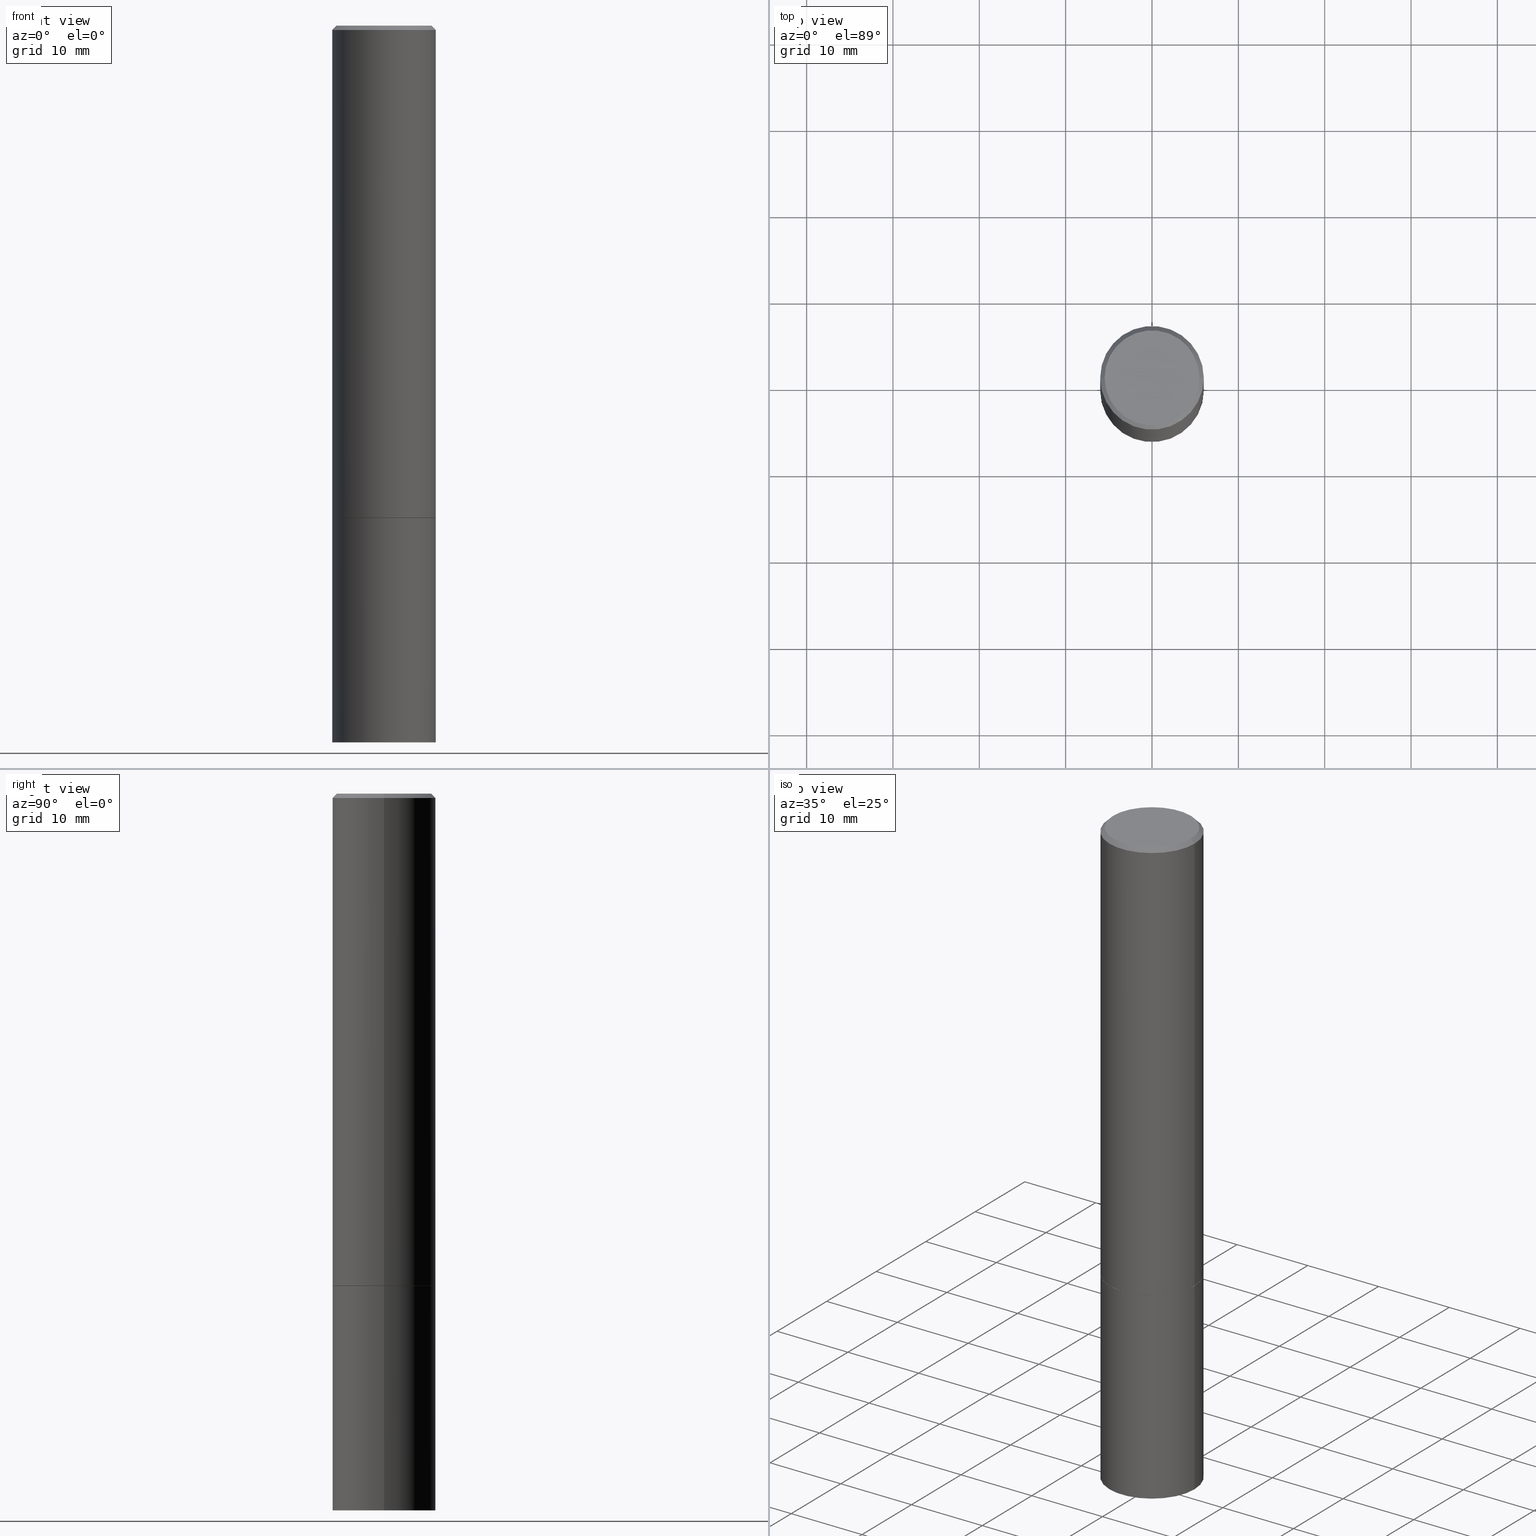
[diagram: canonical four-view strip — front | top / right | iso, engineering-drawing reading convention]
A machine part, canonical four-view strip (front | top / right | iso — engineering-drawing reading convention). The complete STEP part file that produces these views, byte-faithful:
ISO-10303-21;
HEADER;
FILE_DESCRIPTION (( 'STEP AP203' ),
    '1' );
FILE_NAME ('44529.STEP',
    '2024-02-28T06:14:02',
    ( '' ),
    ( '' ),
    'SwSTEP 2.0',
    'SolidWorks 2023',
    '' );
FILE_SCHEMA (( 'CONFIG_CONTROL_DESIGN' ));
ENDSEC;

DATA;
#1 = APPROVAL ( #26, 'UNSPECIFIED' ) ;
#2 = DIRECTION ( 'NONE',  ( -2.445468806185136597E-29, 3.491481338843145583E-15, 1.000000000000000000 ) ) ;
#3 = PLANE ( 'NONE',  #294 ) ;
#4 = CARTESIAN_POINT ( 'NONE',  ( 5.487876547960065873E-29, -7.835233272497903917E-15, -2.244100000000000428 ) ) ;
#5 = EDGE_CURVE ( 'NONE', #178, #274, #170, .T. ) ;
#6 = CARTESIAN_POINT ( 'NONE',  ( 1.509716530915768746E-15, 0.2161999999999997257, -7.527240092128370190E-16 ) ) ;
#7 = APPLICATION_PROTOCOL_DEFINITION ( 'international standard', 'config_control_design', 1994, #199 ) ;
#8 = VECTOR ( 'NONE', #320, 39.37007874015748143 ) ;
#9 = LOCAL_TIME ( 1, 14, 2.000000000000000000, #66 ) ;
#10 = FACE_OUTER_BOUND ( 'NONE', #246, .T. ) ;
#11 = EDGE_CURVE ( 'NONE', #37, #127, #59, .T. ) ;
#12 = PERSON_AND_ORGANIZATION ( #269, #93 ) ;
#13 = DATE_AND_TIME ( #349, #309 ) ;
#14 = CC_DESIGN_PERSON_AND_ORGANIZATION_ASSIGNMENT ( #139, #209, ( #355 ) ) ;
#15 = DIRECTION ( 'NONE',  ( -1.000000000000000000, 6.982962677686265922E-15, -4.876176775795935793E-29 ) ) ;
#16 = APPROVAL_PERSON_ORGANIZATION ( #344, #214, #43 ) ;
#17 = CARTESIAN_POINT ( 'NONE',  ( 0.2361999999999999933, -9.481117575628557435E-15, -2.243100000000000094 ) ) ;
#18 = EDGE_CURVE ( 'NONE', #274, #178, #200, .T. ) ;
#19 = DIRECTION ( 'NONE',  ( 1.000000000000000000, -6.982962677686267499E-15, 4.876217060660161841E-29 ) ) ;
#20 = DESIGN_CONTEXT ( 'detailed design', #25, 'design' ) ;
#21 = AXIS2_PLACEMENT_3D ( 'NONE', #129, #277, #159 ) ;
#22 = CARTESIAN_POINT ( 'NONE',  ( 5.487876547960065873E-29, -7.835233272497903917E-15, -2.244100000000000428 ) ) ;
#23 = EDGE_LOOP ( 'NONE', ( #29, #148 ) ) ;
#24 = ORIENTED_EDGE ( 'NONE', *, *, #191, .T. ) ;
#25 = APPLICATION_CONTEXT ( 'configuration controlled 3d designs of mechanical parts and assemblies' ) ;
#26 = APPROVAL_STATUS ( 'not_yet_approved' ) ;
#27 = AXIS2_PLACEMENT_3D ( 'NONE', #188, #34, #251 ) ;
#28 = CALENDAR_DATE ( 2024, 28, 2 ) ;
#29 = ORIENTED_EDGE ( 'NONE', *, *, #224, .T. ) ;
#30 = CARTESIAN_POINT ( 'NONE',  ( 7.991058417971171713E-29, -1.140911357093774644E-14, -3.267700000000000049 ) ) ;
#31 = CARTESIAN_POINT ( 'NONE',  ( -0.2362000000000000210, -2.272483767102602555E-15, -2.243100000000000094 ) ) ;
#32 = DIRECTION ( 'NONE',  ( -1.000000000000000000, 6.982962677686265922E-15, -4.876176775795935793E-29 ) ) ;
#33 = EDGE_CURVE ( 'NONE', #274, #241, #222, .T. ) ;
#34 = DIRECTION ( 'NONE',  ( -2.445468806185136597E-29, 3.491481338843145583E-15, 1.000000000000000000 ) ) ;
#35 = CARTESIAN_POINT ( 'NONE',  ( 0.000000000000000000, 0.000000000000000000, 0.000000000000000000 ) ) ;
#36 = PLANE ( 'NONE',  #92 ) ;
#37 = VERTEX_POINT ( 'NONE', #278 ) ;
#38 = PERSON_AND_ORGANIZATION_ROLE ( 'creator' ) ;
#39 = VECTOR ( 'NONE', #221, 39.37007874015748143 ) ;
#40 = DIRECTION ( 'NONE',  ( 0.000000000000000000, 0.000000000000000000, 1.000000000000000000 ) ) ;
#41 = CARTESIAN_POINT ( 'NONE',  ( 1.649375784469575806E-15, 0.2361999999999885858, -3.267700000000001381 ) ) ;
#42 = EDGE_CURVE ( 'NONE', #241, #127, #307, .T. ) ;
#43 = APPROVAL_ROLE ( '' ) ;
#44 = CARTESIAN_POINT ( 'NONE',  ( -0.2361999999999999933, -7.943871479852467996E-15, -2.244100000000000428 ) ) ;
#45 = AXIS2_PLACEMENT_3D ( 'NONE', #118, #258, #15 ) ;
#46 =( GEOMETRIC_REPRESENTATION_CONTEXT ( 3 ) GLOBAL_UNCERTAINTY_ASSIGNED_CONTEXT ( ( #145 ) ) GLOBAL_UNIT_ASSIGNED_CONTEXT ( ( #333, #364, #158 ) ) REPRESENTATION_CONTEXT ( 'NONE', 'WORKASPACE' ) );
#47 = ORIENTED_EDGE ( 'NONE', *, *, #260, .F. ) ;
#48 = CIRCLE ( 'NONE', #71, 0.2361999999999999933 ) ;
#49 = AXIS2_PLACEMENT_3D ( 'NONE', #35, #130, #164 ) ;
#50 = DATE_TIME_ROLE ( 'creation_date' ) ;
#51 = DIRECTION ( 'NONE',  ( 0.7071067811865232589, -2.468850131082003836E-15, 0.7071067811865715536 ) ) ;
#52 = ORIENTED_EDGE ( 'NONE', *, *, #234, .F. ) ;
#53 = LINE ( 'NONE', #73, #185 ) ;
#54 = ORIENTED_EDGE ( 'NONE', *, *, #33, .F. ) ;
#55 = ORIENTED_EDGE ( 'NONE', *, *, #42, .T. ) ;
#56 = CIRCLE ( 'NONE', #255, 0.2161999999999997257 ) ;
#57 = ADVANCED_FACE ( 'NONE', ( #10 ), #342, .T. ) ;
#58 = DIRECTION ( 'NONE',  ( -2.445468806185136597E-29, 3.491481338843145583E-15, 1.000000000000000000 ) ) ;
#59 = LINE ( 'NONE', #249, #330 ) ;
#60 = CARTESIAN_POINT ( 'NONE',  ( -0.2351999999999999924, -6.158738303641924552E-15, -2.244100000000000428 ) ) ;
#61 = DIRECTION ( 'NONE',  ( 2.438088387897960049E-29, -3.491481338843145188E-15, -1.000000000000000000 ) ) ;
#62 = AXIS2_PLACEMENT_3D ( 'NONE', #94, #318, #68 ) ;
#63 = DIRECTION ( 'NONE',  ( -2.445468806185136597E-29, 3.491481338843145583E-15, 1.000000000000000000 ) ) ;
#64 = ORIENTED_EDGE ( 'NONE', *, *, #236, .T. ) ;
#65 = CALENDAR_DATE ( 2024, 28, 2 ) ;
#66 = COORDINATED_UNIVERSAL_TIME_OFFSET ( 5, 0, .BEHIND. ) ;
#67 = SECURITY_CLASSIFICATION ( '', '', #198 ) ;
#68 = DIRECTION ( 'NONE',  ( 1.000000000000000000, -6.982962677686266711E-15, 4.876176775795935793E-29 ) ) ;
#69 = CC_DESIGN_PERSON_AND_ORGANIZATION_ASSIGNMENT ( #347, #70, ( #211 ) ) ;
#70 = PERSON_AND_ORGANIZATION_ROLE ( 'design_owner' ) ;
#71 = AXIS2_PLACEMENT_3D ( 'NONE', #304, #90, #225 ) ;
#72 = CIRCLE ( 'NONE', #243, 0.2351999999999999924 ) ;
#73 = CARTESIAN_POINT ( 'NONE',  ( -0.2361999999999997157, 1.579546157692631255E-15, -0.02000000000000005246 ) ) ;
#74 = EDGE_LOOP ( 'NONE', ( #358, #356 ) ) ;
#75 = MECHANICAL_CONTEXT ( 'NONE', #199, 'mechanical' ) ;
#76 = ORIENTED_EDGE ( 'NONE', *, *, #276, .F. ) ;
#77 = MANIFOLD_SOLID_BREP ( 'Body-Move/Copy2[2]', #316 ) ;
#78 = ORIENTED_EDGE ( 'NONE', *, *, #42, .F. ) ;
#79 = ORIENTED_EDGE ( 'NONE', *, *, #276, .T. ) ;
#80 = CARTESIAN_POINT ( 'NONE',  ( 0.2361999999999998545, -1.649375784469495145E-15, 1.151752954442999387E-29 ) ) ;
#81 = DIRECTION ( 'NONE',  ( 1.000000000000000000, -6.982962677686264344E-15, 0.000000000000000000 ) ) ;
#82 = ORIENTED_EDGE ( 'NONE', *, *, #11, .T. ) ;
#83 = DIRECTION ( 'NONE',  ( 1.000000000000000000, -6.982962677686265922E-15, 4.876176775795935793E-29 ) ) ;
#84 = DIRECTION ( 'NONE',  ( -2.445468806185136597E-29, 3.491481338843145583E-15, 1.000000000000000000 ) ) ;
#85 = APPROVAL ( #89, 'UNSPECIFIED' ) ;
#86 = CONICAL_SURFACE ( 'NONE', #212, 0.2351999999999999924, 0.7853981633974141952 ) ;
#87 = CARTESIAN_POINT ( 'NONE',  ( 0.2361999999999999933, -1.649375784469496131E-15, 1.151752954443000088E-29 ) ) ;
#88 = DIRECTION ( 'NONE',  ( 1.000000000000000000, -6.982962677686269077E-15, 0.000000000000000000 ) ) ;
#89 = APPROVAL_STATUS ( 'not_yet_approved' ) ;
#90 = DIRECTION ( 'NONE',  ( -2.445468806185136597E-29, 3.491481338843145583E-15, 1.000000000000000000 ) ) ;
#91 = DATE_TIME_ROLE ( 'classification_date' ) ;
#92 = AXIS2_PLACEMENT_3D ( 'NONE', #6, #61, #32 ) ;
#93 = ORGANIZATION ( 'UNSPECIFIED', 'UNSPECIFIED', '' ) ;
#94 = CARTESIAN_POINT ( 'NONE',  ( 0.000000000000000000, 0.000000000000000000, 0.000000000000000000 ) ) ;
#95 = LINE ( 'NONE', #202, #8 ) ;
#96 = DIRECTION ( 'NONE',  ( 1.000000000000000000, -6.982962677686269077E-15, 0.000000000000000000 ) ) ;
#97 = LOCAL_TIME ( 1, 14, 2.000000000000000000, #359 ) ;
#98 = ORIENTED_EDGE ( 'NONE', *, *, #234, .T. ) ;
#99 = DATE_AND_TIME ( #287, #223 ) ;
#100 = ORIENTED_EDGE ( 'NONE', *, *, #33, .T. ) ;
#101 = APPROVAL_ROLE ( '' ) ;
#102 = EDGE_CURVE ( 'NONE', #264, #151, #242, .T. ) ;
#103 = ORIENTED_EDGE ( 'NONE', *, *, #5, .F. ) ;
#104 = ORIENTED_EDGE ( 'NONE', *, *, #257, .F. ) ;
#105 = EDGE_CURVE ( 'NONE', #178, #127, #345, .T. ) ;
#106 = VERTEX_POINT ( 'NONE', #231 ) ;
#107 = DIRECTION ( 'NONE',  ( -2.445468806185136597E-29, 3.491481338843145583E-15, 1.000000000000000000 ) ) ;
#108 =( LENGTH_UNIT ( ) NAMED_UNIT ( * ) SI_UNIT ( $, .METRE. ) );
#109 = ORIENTED_EDGE ( 'NONE', *, *, #11, .F. ) ;
#110 = ADVANCED_FACE ( 'NONE', ( #165 ), #284, .T. ) ;
#111 = FACE_OUTER_BOUND ( 'NONE', #293, .T. ) ;
#112 = EDGE_LOOP ( 'NONE', ( #272, #100, #76, #220 ) ) ;
#113 = CC_DESIGN_APPROVAL ( #85, ( #339 ) ) ;
#114 = COORDINATED_UNIVERSAL_TIME_OFFSET ( 5, 0, .BEHIND. ) ;
#115 = ORIENTED_EDGE ( 'NONE', *, *, #357, .F. ) ;
#116 = EDGE_CURVE ( 'NONE', #151, #264, #48, .T. ) ;
#117 = PERSON_AND_ORGANIZATION_ROLE ( 'creator' ) ;
#118 = CARTESIAN_POINT ( 'NONE',  ( 1.649375784469550759E-15, 0.2361999999999921662, -2.244100000000000872 ) ) ;
#119 = CARTESIAN_POINT ( 'NONE',  ( 0.2351999999999999924, -9.477626094289712851E-15, -2.244100000000000428 ) ) ;
#120 = AXIS2_PLACEMENT_3D ( 'NONE', #338, #58, #81 ) ;
#121 = EDGE_LOOP ( 'NONE', ( #64, #98 ) ) ;
#122 = VERTEX_POINT ( 'NONE', #60 ) ;
#123 = ADVANCED_FACE ( 'NONE', ( #252 ), #36, .F. ) ;
#124 = DIRECTION ( 'NONE',  ( -0.7071067811865464625, 2.468850131082245228E-15, -0.7071067811865486830 ) ) ;
#125 = VERTEX_POINT ( 'NONE', #161 ) ;
#126 = CC_DESIGN_APPROVAL ( #1, ( #67 ) ) ;
#127 = VERTEX_POINT ( 'NONE', #133 ) ;
#128 = DATE_AND_TIME ( #28, #97 ) ;
#129 = CARTESIAN_POINT ( 'NONE',  ( 4.890937612370285420E-31, -6.982962677686308865E-17, -0.02000000000000005246 ) ) ;
#130 = DIRECTION ( 'NONE',  ( -2.445468806185136597E-29, 3.491481338843145583E-15, 1.000000000000000000 ) ) ;
#131 = ORIENTED_EDGE ( 'NONE', *, *, #270, .T. ) ;
#132 = CARTESIAN_POINT ( 'NONE',  ( 4.890937612370285420E-31, -6.982962677686308865E-17, -0.02000000000000005246 ) ) ;
#133 = CARTESIAN_POINT ( 'NONE',  ( 0.2361999999999997157, -1.690279253850496996E-15, -0.02000000000000005246 ) ) ;
#134 = DIRECTION ( 'NONE',  ( -2.445468806185136597E-29, 3.491481338843145583E-15, 1.000000000000000000 ) ) ;
#135 = ORIENTED_EDGE ( 'NONE', *, *, #116, .F. ) ;
#136 = FACE_OUTER_BOUND ( 'NONE', #325, .T. ) ;
#137 = ORIENTED_EDGE ( 'NONE', *, *, #327, .F. ) ;
#138 = AXIS2_PLACEMENT_3D ( 'NONE', #147, #263, #19 ) ;
#139 = PERSON_AND_ORGANIZATION ( #269, #93 ) ;
#140 = ADVANCED_FACE ( 'NONE', ( #111 ), #3, .T. ) ;
#141 = PLANE ( 'NONE',  #45 ) ;
#142 = CARTESIAN_POINT ( 'NONE',  ( 4.890937612370285420E-31, -6.982962677686308865E-17, -0.02000000000000005246 ) ) ;
#143 = DIRECTION ( 'NONE',  ( 1.000000000000000000, 0.000000000000000000, 0.000000000000000000 ) ) ;
#144 = CARTESIAN_POINT ( 'NONE',  ( 5.487876547960065873E-29, -7.835233272497903917E-15, -2.244100000000000428 ) ) ;
#145 = UNCERTAINTY_MEASURE_WITH_UNIT (LENGTH_MEASURE( 1.000000000000000082E-05 ), #333, 'distance_accuracy_value', 'NONE');
#146 = DIRECTION ( 'NONE',  ( -1.000000000000000000, 6.982962677686266711E-15, 0.000000000000000000 ) ) ;
#147 = CARTESIAN_POINT ( 'NONE',  ( -1.043851414335219820E-46, 1.490343170380447200E-32, 4.268512490100411279E-18 ) ) ;
#148 = ORIENTED_EDGE ( 'NONE', *, *, #332, .T. ) ;
#149 = LINE ( 'NONE', #119, #354 ) ;
#150 = ADVANCED_FACE ( 'NONE', ( #315 ), #280, .T. ) ;
#151 = VERTEX_POINT ( 'NONE', #288 ) ;
#152 = EDGE_LOOP ( 'NONE', ( #303, #208, #299, #329 ) ) ;
#153 = SHAPE_DEFINITION_REPRESENTATION ( #189, #218 ) ;
#154 = ORIENTED_EDGE ( 'NONE', *, *, #260, .T. ) ;
#155 = CC_DESIGN_APPROVAL ( #214, ( #355 ) ) ;
#156 = CARTESIAN_POINT ( 'NONE',  ( -0.2351999999999999924, -6.164036757990147743E-15, -2.244100000000000428 ) ) ;
#157 = CARTESIAN_POINT ( 'NONE',  ( 5.485431079153880270E-29, -7.831741791159060910E-15, -2.243100000000000094 ) ) ;
#158 =( NAMED_UNIT ( * ) SI_UNIT ( $, .STERADIAN. ) SOLID_ANGLE_UNIT ( ) );
#159 = DIRECTION ( 'NONE',  ( 1.000000000000000000, -6.982962677686266711E-15, 0.000000000000000000 ) ) ;
#160 = DIRECTION ( 'NONE',  ( -2.445468806185136597E-29, 3.491481338843145583E-15, 1.000000000000000000 ) ) ;
#161 = CARTESIAN_POINT ( 'NONE',  ( 0.2351999999999999924, -9.477626094289712851E-15, -2.244100000000000428 ) ) ;
#162 = CC_DESIGN_PERSON_AND_ORGANIZATION_ASSIGNMENT ( #201, #38, ( #355 ) ) ;
#163 = AXIS2_PLACEMENT_3D ( 'NONE', #157, #84, #308 ) ;
#164 = DIRECTION ( 'NONE',  ( 1.000000000000000000, -6.982962677686266711E-15, 4.876176775795935793E-29 ) ) ;
#165 = FACE_OUTER_BOUND ( 'NONE', #192, .T. ) ;
#166 = ADVANCED_FACE ( 'NONE', ( #175 ), #141, .F. ) ;
#167 = DIRECTION ( 'NONE',  ( -2.438088387897960049E-29, 3.491481338843145188E-15, 1.000000000000000000 ) ) ;
#168 = DIRECTION ( 'NONE',  ( 1.000000000000000000, -6.982962677686265133E-15, 0.000000000000000000 ) ) ;
#169 = APPROVAL_STATUS ( 'not_yet_approved' ) ;
#170 = CIRCLE ( 'NONE', #301, 0.2361999999999999933 ) ;
#171 = AXIS2_PLACEMENT_3D ( 'NONE', #4, #253, #306 ) ;
#172 = DATE_AND_TIME ( #326, #9 ) ;
#173 = CC_DESIGN_PERSON_AND_ORGANIZATION_ASSIGNMENT ( #12, #232, ( #67 ) ) ;
#174 = CARTESIAN_POINT ( 'NONE',  ( 0.000000000000000000, 0.000000000000000000, 0.000000000000000000 ) ) ;
#175 = FACE_OUTER_BOUND ( 'NONE', #23, .T. ) ;
#176 = ADVANCED_FACE ( 'NONE', ( #233 ), #235, .T. ) ;
#177 = DIRECTION ( 'NONE',  ( 1.000000000000000000, -6.982962677686266711E-15, 4.876176775795936353E-29 ) ) ;
#178 = VERTEX_POINT ( 'NONE', #17 ) ;
#179 = APPROVAL_ROLE ( '' ) ;
#180 = AXIS2_PLACEMENT_3D ( 'NONE', #30, #63, #168 ) ;
#181 = APPROVAL_PERSON_ORGANIZATION ( #230, #85, #179 ) ;
#182 = ORIENTED_EDGE ( 'NONE', *, *, #257, .T. ) ;
#183 = CARTESIAN_POINT ( 'NONE',  ( -1.043851414335219820E-46, 1.490343170380447200E-32, 4.268512490100411279E-18 ) ) ;
#184 = VERTEX_POINT ( 'NONE', #351 ) ;
#185 = VECTOR ( 'NONE', #124, 39.37007874015748143 ) ;
#186 = ORIENTED_EDGE ( 'NONE', *, *, #236, .F. ) ;
#187 = DIRECTION ( 'NONE',  ( -0.7071067811865232589, 7.493145998870265808E-15, 0.7071067811865715536 ) ) ;
#188 = CARTESIAN_POINT ( 'NONE',  ( 0.000000000000000000, 0.000000000000000000, 0.000000000000000000 ) ) ;
#189 = PRODUCT_DEFINITION_SHAPE ( 'NONE', 'NONE',  #339 ) ;
#190 = LENGTH_MEASURE_WITH_UNIT ( LENGTH_MEASURE( 0.02539999999999999897 ), #108 );
#191 = EDGE_CURVE ( 'NONE', #151, #215, #95, .T. ) ;
#192 = EDGE_LOOP ( 'NONE', ( #363, #24, #285, #115 ) ) ;
#193 = LINE ( 'NONE', #156, #205 ) ;
#194 = CIRCLE ( 'NONE', #361, 0.2361999999999997157 ) ;
#195 = MANIFOLD_SOLID_BREP ( 'Body-Move/Copy2[1]', #290 ) ;
#196 = EDGE_LOOP ( 'NONE', ( #109, #186, #154, #55 ) ) ;
#197 = CARTESIAN_POINT ( 'NONE',  ( 5.485431079153880270E-29, -7.831741791159060910E-15, -2.243100000000000094 ) ) ;
#198 = SECURITY_CLASSIFICATION_LEVEL ( 'unclassified' ) ;
#199 = APPLICATION_CONTEXT ( 'configuration controlled 3d designs of mechanical parts and assemblies' ) ;
#200 = CIRCLE ( 'NONE', #163, 0.2361999999999999933 ) ;
#201 = PERSON_AND_ORGANIZATION ( #269, #93 ) ;
#202 = CARTESIAN_POINT ( 'NONE',  ( -0.2361999999999999933, 1.678301941865356591E-15, -1.161852468318208757E-29 ) ) ;
#203 = FACE_OUTER_BOUND ( 'NONE', #217, .T. ) ;
#204 = AXIS2_PLACEMENT_3D ( 'NONE', #144, #261, #96 ) ;
#205 = VECTOR ( 'NONE', #187, 39.37007874015748854 ) ;
#206 = FACE_OUTER_BOUND ( 'NONE', #152, .T. ) ;
#207 = PRODUCT_RELATED_PRODUCT_CATEGORY ( 'detail', '', ( #211 ) ) ;
#208 = ORIENTED_EDGE ( 'NONE', *, *, #116, .T. ) ;
#209 = PERSON_AND_ORGANIZATION_ROLE ( 'design_supplier' ) ;
#210 = ORIENTED_EDGE ( 'NONE', *, *, #18, .T. ) ;
#211 = PRODUCT ( '44529', '44529', '', ( #75 ) ) ;
#212 = AXIS2_PLACEMENT_3D ( 'NONE', #321, #331, #362 ) ;
#213 = LOCAL_TIME ( 1, 14, 2.000000000000000000, #314 ) ;
#214 = APPROVAL ( #169, 'UNSPECIFIED' ) ;
#215 = VERTEX_POINT ( 'NONE', #44 ) ;
#216 = DIRECTION ( 'NONE',  ( 1.000000000000000000, -6.982962677686267499E-15, 4.876217060660161841E-29 ) ) ;
#217 = EDGE_LOOP ( 'NONE', ( #137, #131, #182, #268 ) ) ;
#218 = ADVANCED_BREP_SHAPE_REPRESENTATION ( '44529', ( #195, #77, #238 ), #46 ) ;
#219 = PLANE ( 'NONE',  #343 ) ;
#220 = ORIENTED_EDGE ( 'NONE', *, *, #105, .F. ) ;
#221 = DIRECTION ( 'NONE',  ( -2.445468806185136877E-29, 3.491481338843145188E-15, 1.000000000000000000 ) ) ;
#222 = LINE ( 'NONE', #254, #291 ) ;
#223 = LOCAL_TIME ( 1, 14, 2.000000000000000000, #352 ) ;
#224 = EDGE_CURVE ( 'NONE', #106, #215, #229, .T. ) ;
#225 = DIRECTION ( 'NONE',  ( 1.000000000000000000, -6.982962677686265133E-15, 0.000000000000000000 ) ) ;
#226 = CARTESIAN_POINT ( 'NONE',  ( 5.487876547960065873E-29, -7.835233272497903917E-15, -2.244100000000000428 ) ) ;
#227 = ADVANCED_FACE ( 'NONE', ( #203 ), #86, .T. ) ;
#228 = ORIENTED_EDGE ( 'NONE', *, *, #102, .F. ) ;
#229 = CIRCLE ( 'NONE', #204, 0.2361999999999999933 ) ;
#230 = PERSON_AND_ORGANIZATION ( #269, #93 ) ;
#231 = CARTESIAN_POINT ( 'NONE',  ( 0.2361999999999999933, -9.484609056967400443E-15, -2.244100000000000428 ) ) ;
#232 = PERSON_AND_ORGANIZATION_ROLE ( 'classification_officer' ) ;
#233 = FACE_OUTER_BOUND ( 'NONE', #112, .T. ) ;
#234 = EDGE_CURVE ( 'NONE', #37, #184, #56, .T. ) ;
#235 = CYLINDRICAL_SURFACE ( 'NONE', #62, 0.2361999999999998545 ) ;
#236 = EDGE_CURVE ( 'NONE', #184, #37, #360, .T. ) ;
#237 = CC_DESIGN_DATE_AND_TIME_ASSIGNMENT ( #172, #91, ( #67 ) ) ;
#238 = AXIS2_PLACEMENT_3D ( 'NONE', #174, #40, #143 ) ;
#239 = CARTESIAN_POINT ( 'NONE',  ( 0.000000000000000000, 0.000000000000000000, 0.000000000000000000 ) ) ;
#240 = ORIENTED_EDGE ( 'NONE', *, *, #282, .T. ) ;
#241 = VERTEX_POINT ( 'NONE', #328 ) ;
#242 = CIRCLE ( 'NONE', #180, 0.2361999999999999933 ) ;
#243 = AXIS2_PLACEMENT_3D ( 'NONE', #22, #160, #279 ) ;
#244 = DIRECTION ( 'NONE',  ( -2.445468806185136597E-29, 3.491481338843145583E-15, 1.000000000000000000 ) ) ;
#245 = DIRECTION ( 'NONE',  ( 1.000000000000000000, -6.982962677686264344E-15, 0.000000000000000000 ) ) ;
#246 = EDGE_LOOP ( 'NONE', ( #52, #82, #79, #47 ) ) ;
#247 = FACE_OUTER_BOUND ( 'NONE', #74, .T. ) ;
#248 = AXIS2_PLACEMENT_3D ( 'NONE', #340, #311, #365 ) ;
#249 = CARTESIAN_POINT ( 'NONE',  ( 0.2361999999999997157, -1.690279253850496996E-15, -0.02000000000000005246 ) ) ;
#250 = AXIS2_PLACEMENT_3D ( 'NONE', #283, #134, #245 ) ;
#251 = DIRECTION ( 'NONE',  ( 1.000000000000000000, -6.982962677686266711E-15, 4.876176775795936353E-29 ) ) ;
#252 = FACE_OUTER_BOUND ( 'NONE', #121, .T. ) ;
#253 = DIRECTION ( 'NONE',  ( -2.445468806185136597E-29, 3.491481338843145583E-15, 1.000000000000000000 ) ) ;
#254 = CARTESIAN_POINT ( 'NONE',  ( -0.2361999999999998545, 1.678301941865355605E-15, -1.161852468318208056E-29 ) ) ;
#255 = AXIS2_PLACEMENT_3D ( 'NONE', #183, #244, #216 ) ;
#256 = DIRECTION ( 'NONE',  ( -1.000000000000000000, 6.982962677686265922E-15, -4.876176775795935793E-29 ) ) ;
#257 = EDGE_CURVE ( 'NONE', #125, #178, #149, .T. ) ;
#258 = DIRECTION ( 'NONE',  ( 2.438088387897960049E-29, -3.491481338843145188E-15, -1.000000000000000000 ) ) ;
#259 = APPROVAL_DATE_TIME ( #13, #85 ) ;
#260 = EDGE_CURVE ( 'NONE', #184, #241, #53, .T. ) ;
#261 = DIRECTION ( 'NONE',  ( -2.445468806185136597E-29, 3.491481338843145583E-15, 1.000000000000000000 ) ) ;
#262 = ADVANCED_FACE ( 'NONE', ( #206 ), #271, .T. ) ;
#263 = DIRECTION ( 'NONE',  ( -2.445468806185136597E-29, 3.491481338843145583E-15, 1.000000000000000000 ) ) ;
#264 = VERTEX_POINT ( 'NONE', #266 ) ;
#265 = CC_DESIGN_SECURITY_CLASSIFICATION ( #67, ( #355 ) ) ;
#266 = CARTESIAN_POINT ( 'NONE',  ( 0.2361999999999999933, -1.305848935540724297E-14, -3.267700000000000049 ) ) ;
#267 = APPROVAL_DATE_TIME ( #128, #1 ) ;
#268 = ORIENTED_EDGE ( 'NONE', *, *, #18, .F. ) ;
#269 = PERSON ( 'UNSPECIFIED', 'UNSPECIFIED', 'UNSPECIFIED', ('UNSPECIFIED'), ('UNSPECIFIED'), ('UNSPECIFIED') ) ;
#270 = EDGE_CURVE ( 'NONE', #122, #125, #72, .T. ) ;
#271 = CYLINDRICAL_SURFACE ( 'NONE', #323, 0.2361999999999999933 ) ;
#272 = ORIENTED_EDGE ( 'NONE', *, *, #5, .T. ) ;
#273 = AXIS2_PLACEMENT_3D ( 'NONE', #142, #313, #146 ) ;
#274 = VERTEX_POINT ( 'NONE', #31 ) ;
#275 = CYLINDRICAL_SURFACE ( 'NONE', #49, 0.2361999999999998545 ) ;
#276 = EDGE_CURVE ( 'NONE', #127, #241, #194, .T. ) ;
#277 = DIRECTION ( 'NONE',  ( -2.445468806185136597E-29, 3.491481338843145583E-15, 1.000000000000000000 ) ) ;
#278 = CARTESIAN_POINT ( 'NONE',  ( 0.2161999999999997257, -1.586759460484350016E-15, 4.268512490111238857E-18 ) ) ;
#279 = DIRECTION ( 'NONE',  ( 1.000000000000000000, -6.982962677686264344E-15, 0.000000000000000000 ) ) ;
#280 = CONICAL_SURFACE ( 'NONE', #273, 0.2361999999999997157, 0.7853981633974467247 ) ;
#281 = ORIENTED_EDGE ( 'NONE', *, *, #327, .T. ) ;
#282 = EDGE_CURVE ( 'NONE', #125, #122, #334, .T. ) ;
#283 = CARTESIAN_POINT ( 'NONE',  ( 5.487876547960065873E-29, -7.835233272497903917E-15, -2.244100000000000428 ) ) ;
#284 = CYLINDRICAL_SURFACE ( 'NONE', #27, 0.2361999999999999933 ) ;
#285 = ORIENTED_EDGE ( 'NONE', *, *, #224, .F. ) ;
#286 = APPROVAL_DATE_TIME ( #99, #214 ) ;
#287 = CALENDAR_DATE ( 2024, 28, 2 ) ;
#288 = CARTESIAN_POINT ( 'NONE',  ( -0.2361999999999999933, -7.943871479852467996E-15, -3.267700000000000049 ) ) ;
#289 = PERSON_AND_ORGANIZATION ( #269, #93 ) ;
#290 = CLOSED_SHELL ( 'NONE', ( #110, #140, #166, #262 ) ) ;
#291 = VECTOR ( 'NONE', #366, 39.37007874015748143 ) ;
#292 = CONICAL_SURFACE ( 'NONE', #250, 0.2351999999999999924, 0.7853981633974141952 ) ;
#293 = EDGE_LOOP ( 'NONE', ( #228, #135 ) ) ;
#294 = AXIS2_PLACEMENT_3D ( 'NONE', #41, #353, #256 ) ;
#295 = APPROVAL_PERSON_ORGANIZATION ( #317, #1, #101 ) ;
#296 = EDGE_LOOP ( 'NONE', ( #54, #210, #335, #78 ) ) ;
#297 = CC_DESIGN_DATE_AND_TIME_ASSIGNMENT ( #312, #50, ( #339 ) ) ;
#298 = ADVANCED_FACE ( 'NONE', ( #247 ), #219, .F. ) ;
#299 = ORIENTED_EDGE ( 'NONE', *, *, #357, .T. ) ;
#300 = CC_DESIGN_PERSON_AND_ORGANIZATION_ASSIGNMENT ( #289, #117, ( #339 ) ) ;
#301 = AXIS2_PLACEMENT_3D ( 'NONE', #197, #107, #88 ) ;
#302 = DIRECTION ( 'NONE',  ( 1.000000000000000000, -6.982962677686266711E-15, 0.000000000000000000 ) ) ;
#303 = ORIENTED_EDGE ( 'NONE', *, *, #191, .F. ) ;
#304 = CARTESIAN_POINT ( 'NONE',  ( 7.991058417971171713E-29, -1.140911357093774644E-14, -3.267700000000000049 ) ) ;
#305 = DIRECTION ( 'NONE',  ( 0.7071067811865464625, -7.319954787623252890E-15, -0.7071067811865486830 ) ) ;
#306 = DIRECTION ( 'NONE',  ( 1.000000000000000000, -6.982962677686269077E-15, 0.000000000000000000 ) ) ;
#307 = CIRCLE ( 'NONE', #21, 0.2361999999999997157 ) ;
#308 = DIRECTION ( 'NONE',  ( 1.000000000000000000, -6.982962677686269077E-15, 0.000000000000000000 ) ) ;
#309 = LOCAL_TIME ( 1, 14, 2.000000000000000000, #114 ) ;
#310 = LINE ( 'NONE', #87, #39 ) ;
#311 = DIRECTION ( 'NONE',  ( 2.445468806185136597E-29, -3.491481338843145583E-15, -1.000000000000000000 ) ) ;
#312 = DATE_AND_TIME ( #65, #213 ) ;
#313 = DIRECTION ( 'NONE',  ( 2.445468806185136597E-29, -3.491481338843145583E-15, -1.000000000000000000 ) ) ;
#314 = COORDINATED_UNIVERSAL_TIME_OFFSET ( 5, 0, .BEHIND. ) ;
#315 = FACE_OUTER_BOUND ( 'NONE', #196, .T. ) ;
#316 = CLOSED_SHELL ( 'NONE', ( #350, #176, #57, #150, #346, #227, #298, #123 ) ) ;
#317 = PERSON_AND_ORGANIZATION ( #269, #93 ) ;
#318 = DIRECTION ( 'NONE',  ( -2.445468806185136597E-29, 3.491481338843145583E-15, 1.000000000000000000 ) ) ;
#319 = APPLICATION_PROTOCOL_DEFINITION ( 'international standard', 'config_control_design', 1994, #25 ) ;
#320 = DIRECTION ( 'NONE',  ( -2.445468806185136877E-29, 3.491481338843145188E-15, 1.000000000000000000 ) ) ;
#321 = CARTESIAN_POINT ( 'NONE',  ( 5.487876547960065873E-29, -7.835233272497903917E-15, -2.244100000000000428 ) ) ;
#322 = VECTOR ( 'NONE', #337, 39.37007874015748143 ) ;
#323 = AXIS2_PLACEMENT_3D ( 'NONE', #239, #324, #177 ) ;
#324 = DIRECTION ( 'NONE',  ( -2.445468806185136597E-29, 3.491481338843145583E-15, 1.000000000000000000 ) ) ;
#325 = EDGE_LOOP ( 'NONE', ( #240, #281, #103, #104 ) ) ;
#326 = CALENDAR_DATE ( 2024, 28, 2 ) ;
#327 = EDGE_CURVE ( 'NONE', #122, #274, #193, .T. ) ;
#328 = CARTESIAN_POINT ( 'NONE',  ( -0.2361999999999997157, 1.579546157692631255E-15, -0.02000000000000005246 ) ) ;
#329 = ORIENTED_EDGE ( 'NONE', *, *, #332, .F. ) ;
#330 = VECTOR ( 'NONE', #305, 39.37007874015748143 ) ;
#331 = DIRECTION ( 'NONE',  ( -2.445468806185136597E-29, 3.491481338843145583E-15, 1.000000000000000000 ) ) ;
#332 = EDGE_CURVE ( 'NONE', #215, #106, #348, .T. ) ;
#333 =( CONVERSION_BASED_UNIT ( 'INCH', #190 ) LENGTH_UNIT ( ) NAMED_UNIT ( #336 ) );
#334 = CIRCLE ( 'NONE', #120, 0.2351999999999999924 ) ;
#335 = ORIENTED_EDGE ( 'NONE', *, *, #105, .T. ) ;
#336 = DIMENSIONAL_EXPONENTS ( 1.000000000000000000, 0.000000000000000000, 0.000000000000000000, 0.000000000000000000, 0.000000000000000000, 0.000000000000000000, 0.000000000000000000 ) ;
#337 = DIRECTION ( 'NONE',  ( -2.445468806185136877E-29, 3.491481338843145188E-15, 1.000000000000000000 ) ) ;
#338 = CARTESIAN_POINT ( 'NONE',  ( 5.487876547960065873E-29, -7.835233272497903917E-15, -2.244100000000000428 ) ) ;
#339 = PRODUCT_DEFINITION ( 'UNKNOWN', '', #355, #20 ) ;
#340 = CARTESIAN_POINT ( 'NONE',  ( 4.890937612370285420E-31, -6.982962677686308865E-17, -0.02000000000000005246 ) ) ;
#341 = FACE_OUTER_BOUND ( 'NONE', #296, .T. ) ;
#342 = CONICAL_SURFACE ( 'NONE', #248, 0.2361999999999997157, 0.7853981633974467247 ) ;
#343 = AXIS2_PLACEMENT_3D ( 'NONE', #226, #167, #83 ) ;
#344 = PERSON_AND_ORGANIZATION ( #269, #93 ) ;
#345 = LINE ( 'NONE', #80, #322 ) ;
#346 = ADVANCED_FACE ( 'NONE', ( #341 ), #275, .T. ) ;
#347 = PERSON_AND_ORGANIZATION ( #269, #93 ) ;
#348 = CIRCLE ( 'NONE', #171, 0.2361999999999999933 ) ;
#349 = CALENDAR_DATE ( 2024, 28, 2 ) ;
#350 = ADVANCED_FACE ( 'NONE', ( #136 ), #292, .T. ) ;
#351 = CARTESIAN_POINT ( 'NONE',  ( -0.2161999999999997257, 1.544631344304200197E-15, 4.268512490089730842E-18 ) ) ;
#352 = COORDINATED_UNIVERSAL_TIME_OFFSET ( 5, 0, .BEHIND. ) ;
#353 = DIRECTION ( 'NONE',  ( 2.438088387897960049E-29, -3.491481338843145188E-15, -1.000000000000000000 ) ) ;
#354 = VECTOR ( 'NONE', #51, 39.37007874015748854 ) ;
#355 = PRODUCT_DEFINITION_FORMATION_WITH_SPECIFIED_SOURCE ( 'ANY', '', #211, .NOT_KNOWN. ) ;
#356 = ORIENTED_EDGE ( 'NONE', *, *, #270, .F. ) ;
#357 = EDGE_CURVE ( 'NONE', #264, #106, #310, .T. ) ;
#358 = ORIENTED_EDGE ( 'NONE', *, *, #282, .F. ) ;
#359 = COORDINATED_UNIVERSAL_TIME_OFFSET ( 5, 0, .BEHIND. ) ;
#360 = CIRCLE ( 'NONE', #138, 0.2161999999999997257 ) ;
#361 = AXIS2_PLACEMENT_3D ( 'NONE', #132, #2, #302 ) ;
#362 = DIRECTION ( 'NONE',  ( 1.000000000000000000, -6.982962677686264344E-15, 0.000000000000000000 ) ) ;
#363 = ORIENTED_EDGE ( 'NONE', *, *, #102, .T. ) ;
#364 =( NAMED_UNIT ( * ) PLANE_ANGLE_UNIT ( ) SI_UNIT ( $, .RADIAN. ) );
#365 = DIRECTION ( 'NONE',  ( -1.000000000000000000, 6.982962677686266711E-15, 0.000000000000000000 ) ) ;
#366 = DIRECTION ( 'NONE',  ( -2.445468806185136877E-29, 3.491481338843145188E-15, 1.000000000000000000 ) ) ;
ENDSEC;
END-ISO-10303-21;
